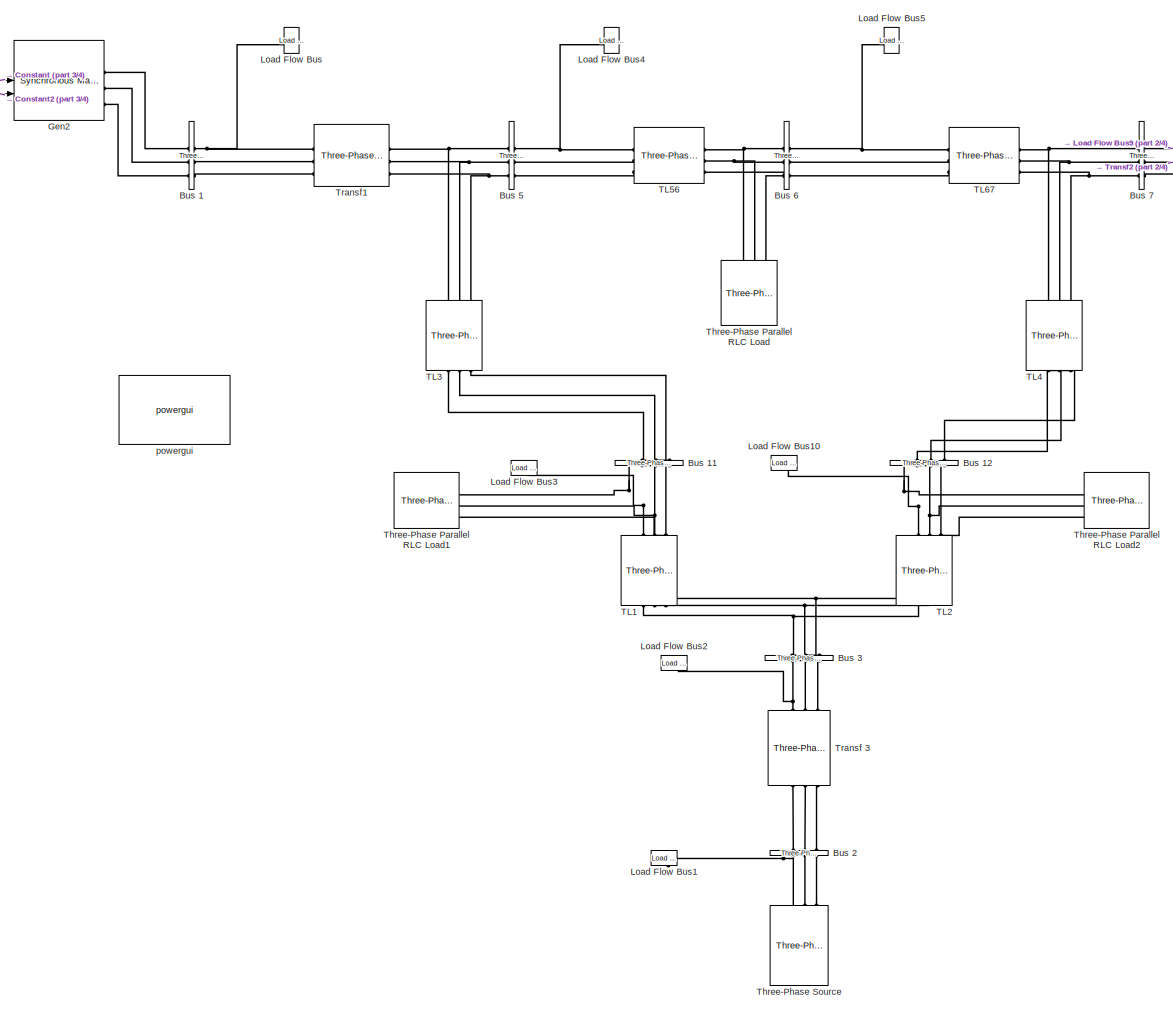
[diagram: root canvas - part 1/4, central region]
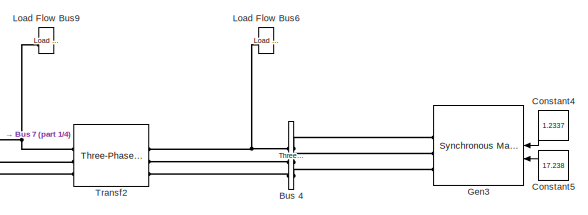
[diagram: root canvas - part 2/4, top right region]
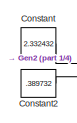
[diagram: root canvas - part 3/4, top left region]
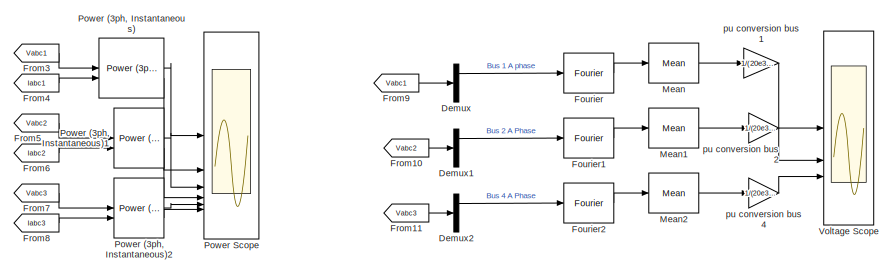
[diagram: root canvas - part 4/4, bottom center region]
MODEL slx_33bebc0947e6
KIND model
CONFIG AbsTol = auto
CONFIG EnableMultiTasking = off
CONFIG FixedStep = auto
CONFIG MaxStep = auto
CONFIG MinStep = auto
CONFIG RelTol = 1e-3
CONFIG SampleTimeConstraint = Unconstrained
CONFIG SolverName = VariableStepAuto
CONFIG StartTime = 0.0
CONFIG StopTime = 10
BLOCK [Reference] Bus 1  REF=spsThreePhaseVIMeasurementLib/Three-Phase
V-I Measurement
  LibrarySourceBlock = sps_lib/Sensors and Measurements/Three-Phase\nV-I Measurement
  SourceBlock = spsThreePhaseVIMeasurementLib/Three-Phase\nV-I Measurement
  SourceType = Three-Phase VI Measurement
BLOCK [Reference] Bus 11  REF=spsThreePhaseVIMeasurementLib/Three-Phase
V-I Measurement
  LibrarySourceBlock = sps_lib/Sensors and Measurements/Three-Phase\nV-I Measurement
  NameLocation = left
  SourceBlock = spsThreePhaseVIMeasurementLib/Three-Phase\nV-I Measurement
  SourceType = Three-Phase VI Measurement
BLOCK [Reference] Bus 12  REF=spsThreePhaseVIMeasurementLib/Three-Phase
V-I Measurement
  LibrarySourceBlock = sps_lib/Sensors and Measurements/Three-Phase\nV-I Measurement
  NameLocation = left
  SourceBlock = spsThreePhaseVIMeasurementLib/Three-Phase\nV-I Measurement
  SourceType = Three-Phase VI Measurement
BLOCK [Reference] Bus 2  REF=spsThreePhaseVIMeasurementLib/Three-Phase
V-I Measurement
  LibrarySourceBlock = sps_lib/Sensors and Measurements/Three-Phase\nV-I Measurement
  NameLocation = right
  SourceBlock = spsThreePhaseVIMeasurementLib/Three-Phase\nV-I Measurement
  SourceType = Three-Phase VI Measurement
BLOCK [Reference] Bus 3  REF=spsThreePhaseVIMeasurementLib/Three-Phase
V-I Measurement
  LibrarySourceBlock = sps_lib/Sensors and Measurements/Three-Phase\nV-I Measurement
  NameLocation = left
  SourceBlock = spsThreePhaseVIMeasurementLib/Three-Phase\nV-I Measurement
  SourceType = Three-Phase VI Measurement
BLOCK [Reference] Bus 4  REF=spsThreePhaseVIMeasurementLib/Three-Phase
V-I Measurement
  LibrarySourceBlock = sps_lib/Sensors and Measurements/Three-Phase\nV-I Measurement
  SourceBlock = spsThreePhaseVIMeasurementLib/Three-Phase\nV-I Measurement
  SourceType = Three-Phase VI Measurement
BLOCK [Reference] Bus 5  REF=spsThreePhaseVIMeasurementLib/Three-Phase
V-I Measurement
  LibrarySourceBlock = sps_lib/Sensors and Measurements/Three-Phase\nV-I Measurement
  SourceBlock = spsThreePhaseVIMeasurementLib/Three-Phase\nV-I Measurement
  SourceType = Three-Phase VI Measurement
BLOCK [Reference] Bus 6  REF=spsThreePhaseVIMeasurementLib/Three-Phase
V-I Measurement
  LibrarySourceBlock = sps_lib/Sensors and Measurements/Three-Phase\nV-I Measurement
  SourceBlock = spsThreePhaseVIMeasurementLib/Three-Phase\nV-I Measurement
  SourceType = Three-Phase VI Measurement
BLOCK [Reference] Bus 7  REF=spsThreePhaseVIMeasurementLib/Three-Phase
V-I Measurement
  LibrarySourceBlock = sps_lib/Sensors and Measurements/Three-Phase\nV-I Measurement
  SourceBlock = spsThreePhaseVIMeasurementLib/Three-Phase\nV-I Measurement
  SourceType = Three-Phase VI Measurement
BLOCK [Constant] Constant
  Value = 2.332432
BLOCK [Constant] Constant2
  Value = .389732
BLOCK [Constant] Constant4
  NameLocation = top
  Value = 1.2337
BLOCK [Constant] Constant5
  NameLocation = top
  Value = 17.238
BLOCK [Demux] Demux
  Outputs = 3
BLOCK [Demux] Demux1
  Outputs = 3
BLOCK [Demux] Demux2
  Outputs = 3
BLOCK [Reference] Fourier  REF=spsFourierLib/Fourier
  LibrarySourceBlock = sps_lib/Sensors and Measurements/Fourier
  SourceBlock = spsFourierLib/Fourier
  SourceType = Fourier
BLOCK [Reference] Fourier1  REF=spsFourierLib/Fourier
  LibrarySourceBlock = sps_lib/Sensors and Measurements/Fourier
  SourceBlock = spsFourierLib/Fourier
  SourceType = Fourier
BLOCK [Reference] Fourier2  REF=spsFourierLib/Fourier
  LibrarySourceBlock = sps_lib/Sensors and Measurements/Fourier
  SourceBlock = spsFourierLib/Fourier
  SourceType = Fourier
BLOCK [From] From10
  GotoTag = Vabc2
BLOCK [From] From11
  GotoTag = Vabc3
BLOCK [From] From3
  GotoTag = Vabc1
BLOCK [From] From4
  GotoTag = Iabc1
BLOCK [From] From5
  GotoTag = Vabc2
BLOCK [From] From6
  GotoTag = Iabc2
BLOCK [From] From7
  GotoTag = Vabc3
BLOCK [From] From8
  GotoTag = Iabc3
BLOCK [From] From9
  GotoTag = Vabc1
BLOCK [Reference] Gen2  REF=spsSynchronousMachinepuStandardLib/Synchronous Machine
pu Standard
  LibrarySourceBlock = sps_lib/Electrical Machines/Synchronous Machine\npu Standard
  SourceBlock = spsSynchronousMachinepuStandardLib/Synchronous Machine\npu Standard
  SourceType = Synchronous Machine
BLOCK [Reference] Gen3  REF=spsSynchronousMachinepuStandardLib/Synchronous Machine
pu Standard
  LibrarySourceBlock = sps_lib/Electrical Machines/Synchronous Machine\npu Standard
  SourceBlock = spsSynchronousMachinepuStandardLib/Synchronous Machine\npu Standard
  SourceType = Synchronous Machine
BLOCK [Reference] Load Flow Bus  REF=spsLoadFlowBusLib/Load Flow Bus
  AttributesFormatString = %<ID>\n%<Vbase>V\n%<VLF>pu\n%<angleLF>deg.
  LibrarySourceBlock = sps_lib/Utilities/Load Flow Bus
  SourceBlock = spsLoadFlowBusLib/Load Flow Bus
  SourceType = Load Flow Bus
BLOCK [Reference] Load Flow Bus1  REF=spsLoadFlowBusLib/Load Flow Bus
  AttributesFormatString = %<ID>\n%<Vbase>V\n%<VLF>pu\n%<angleLF>deg.
  LibrarySourceBlock = sps_lib/Utilities/Load Flow Bus
  NameLocation = right
  SourceBlock = spsLoadFlowBusLib/Load Flow Bus
  SourceType = Load Flow Bus
BLOCK [Reference] Load Flow Bus10  REF=spsLoadFlowBusLib/Load Flow Bus
  AttributesFormatString = %<ID>\n%<Vbase>V\n%<VLF>pu\n%<angleLF>deg.
  LibrarySourceBlock = sps_lib/Utilities/Load Flow Bus
  NameLocation = right
  SourceBlock = spsLoadFlowBusLib/Load Flow Bus
  SourceType = Load Flow Bus
BLOCK [Reference] Load Flow Bus2  REF=spsLoadFlowBusLib/Load Flow Bus
  AttributesFormatString = %<ID>\n%<Vbase>V\n%<VLF>pu\n%<angleLF>deg.
  LibrarySourceBlock = sps_lib/Utilities/Load Flow Bus
  NameLocation = right
  SourceBlock = spsLoadFlowBusLib/Load Flow Bus
  SourceType = Load Flow Bus
BLOCK [Reference] Load Flow Bus3  REF=spsLoadFlowBusLib/Load Flow Bus
  AttributesFormatString = %<ID>\n%<Vbase>V\n%<VLF>pu\n%<angleLF>deg.
  LibrarySourceBlock = sps_lib/Utilities/Load Flow Bus
  NameLocation = right
  SourceBlock = spsLoadFlowBusLib/Load Flow Bus
  SourceType = Load Flow Bus
BLOCK [Reference] Load Flow Bus4  REF=spsLoadFlowBusLib/Load Flow Bus
  AttributesFormatString = %<ID>\n%<Vbase>V\n%<VLF>pu\n%<angleLF>deg.
  LibrarySourceBlock = sps_lib/Utilities/Load Flow Bus
  SourceBlock = spsLoadFlowBusLib/Load Flow Bus
  SourceType = Load Flow Bus
BLOCK [Reference] Load Flow Bus5  REF=spsLoadFlowBusLib/Load Flow Bus
  AttributesFormatString = %<ID>\n%<Vbase>V\n%<VLF>pu\n%<angleLF>deg.
  LibrarySourceBlock = sps_lib/Utilities/Load Flow Bus
  SourceBlock = spsLoadFlowBusLib/Load Flow Bus
  SourceType = Load Flow Bus
BLOCK [Reference] Load Flow Bus6  REF=spsLoadFlowBusLib/Load Flow Bus
  AttributesFormatString = %<ID>\n%<Vbase>V\n%<VLF>pu\n%<angleLF>deg.
  LibrarySourceBlock = sps_lib/Utilities/Load Flow Bus
  SourceBlock = spsLoadFlowBusLib/Load Flow Bus
  SourceType = Load Flow Bus
BLOCK [Reference] Load Flow Bus9  REF=spsLoadFlowBusLib/Load Flow Bus
  AttributesFormatString = %<ID>\n%<Vbase>V\n%<VLF>pu\n%<angleLF>deg.
  LibrarySourceBlock = sps_lib/Utilities/Load Flow Bus
  SourceBlock = spsLoadFlowBusLib/Load Flow Bus
  SourceType = Load Flow Bus
BLOCK [Reference] Mean  REF=spsMeanLib/Mean
  LibrarySourceBlock = sps_lib/Sensors and Measurements/Mean
  SourceBlock = spsMeanLib/Mean
  SourceType = Mean
BLOCK [Reference] Mean1  REF=spsMeanLib/Mean
  LibrarySourceBlock = sps_lib/Sensors and Measurements/Mean
  SourceBlock = spsMeanLib/Mean
  SourceType = Mean
BLOCK [Reference] Mean2  REF=spsMeanLib/Mean
  LibrarySourceBlock = sps_lib/Sensors and Measurements/Mean
  SourceBlock = spsMeanLib/Mean
  SourceType = Mean
BLOCK [Reference] Power (3ph, Instantaneous)  REF=spsPower3phInstantaneousLib/Power
(3ph, Instantaneous)
  LibrarySourceBlock = sps_lib/Sensors and Measurements/Power\n(3ph, Instantaneous)
  SourceBlock = spsPower3phInstantaneousLib/Power\n(3ph, Instantaneous)
  SourceType = Power (3ph, Instantaneous)
BLOCK [Reference] Power (3ph, Instantaneous)1  REF=spsPower3phInstantaneousLib/Power
(3ph, Instantaneous)
  LibrarySourceBlock = sps_lib/Sensors and Measurements/Power\n(3ph, Instantaneous)
  SourceBlock = spsPower3phInstantaneousLib/Power\n(3ph, Instantaneous)
  SourceType = Power (3ph, Instantaneous)
BLOCK [Reference] Power (3ph, Instantaneous)2  REF=spsPower3phInstantaneousLib/Power
(3ph, Instantaneous)
  LibrarySourceBlock = sps_lib/Sensors and Measurements/Power\n(3ph, Instantaneous)
  SourceBlock = spsPower3phInstantaneousLib/Power\n(3ph, Instantaneous)
  SourceType = Power (3ph, Instantaneous)
BLOCK [Scope] Power Scope
  Floating = off
  NumInputPorts = 6
  ScopeSpecificationString = Simulink.scopes.TimeScopeBlockCfg('CurrentConfiguration', extmgr.ConfigurationSet(extmgr.Configuration('Core','General UI',true),extmgr.Configuration('Core','Source UI',true),extmgr.Configuration('Sources','WiredSimulink',true),extmgr.Configuration('Visuals','Time Domain',true,'SerializedDisplays',{struct('MinYLimReal','-688894075.64421','MaxYLimReal','978730674.07172','YLabelReal','','MinYLimMag'...<+5298ch>
BLOCK [Reference] TL1  REF=spsThreePhaseSeriesRLCBranchLib/Three-Phase
Series RLC Branch
  AttributesFormatString = \n
  LibrarySourceBlock = sps_lib/Passives/Three-Phase\nSeries RLC Branch
  NameLocation = left
  SourceBlock = spsThreePhaseSeriesRLCBranchLib/Three-Phase\nSeries RLC Branch
  SourceType = Three-Phase Series RLC Branch
BLOCK [Reference] TL2  REF=spsThreePhaseSeriesRLCBranchLib/Three-Phase
Series RLC Branch
  AttributesFormatString = \n
  LibrarySourceBlock = sps_lib/Passives/Three-Phase\nSeries RLC Branch
  NameLocation = left
  SourceBlock = spsThreePhaseSeriesRLCBranchLib/Three-Phase\nSeries RLC Branch
  SourceType = Three-Phase Series RLC Branch
BLOCK [Reference] TL3  REF=spsThreePhaseSeriesRLCBranchLib/Three-Phase
Series RLC Branch
  AttributesFormatString = \n
  LibrarySourceBlock = sps_lib/Passives/Three-Phase\nSeries RLC Branch
  NameLocation = left
  SourceBlock = spsThreePhaseSeriesRLCBranchLib/Three-Phase\nSeries RLC Branch
  SourceType = Three-Phase Series RLC Branch
BLOCK [Reference] TL4  REF=spsThreePhaseSeriesRLCBranchLib/Three-Phase
Series RLC Branch
  AttributesFormatString = \n
  LibrarySourceBlock = sps_lib/Passives/Three-Phase\nSeries RLC Branch
  NameLocation = left
  SourceBlock = spsThreePhaseSeriesRLCBranchLib/Three-Phase\nSeries RLC Branch
  SourceType = Three-Phase Series RLC Branch
BLOCK [Reference] TL56  REF=spsThreePhaseSeriesRLCBranchLib/Three-Phase
Series RLC Branch
  AttributesFormatString = \n
  LibrarySourceBlock = sps_lib/Passives/Three-Phase\nSeries RLC Branch
  SourceBlock = spsThreePhaseSeriesRLCBranchLib/Three-Phase\nSeries RLC Branch
  SourceType = Three-Phase Series RLC Branch
BLOCK [Reference] TL67  REF=spsThreePhaseSeriesRLCBranchLib/Three-Phase
Series RLC Branch
  AttributesFormatString = \n
  LibrarySourceBlock = sps_lib/Passives/Three-Phase\nSeries RLC Branch
  SourceBlock = spsThreePhaseSeriesRLCBranchLib/Three-Phase\nSeries RLC Branch
  SourceType = Three-Phase Series RLC Branch
BLOCK [Reference] Three-Phase Parallel RLC Load  REF=spsThreePhaseParallelRLCLoadLib/Three-Phase
Parallel RLC Load
  AttributesFormatString = \n
  LibrarySourceBlock = sps_lib/Passives/Three-Phase\nParallel RLC Load
  SourceBlock = spsThreePhaseParallelRLCLoadLib/Three-Phase\nParallel RLC Load
  SourceType = Three-Phase Parallel RLC Load
BLOCK [Reference] Three-Phase Parallel RLC Load1  REF=spsThreePhaseParallelRLCLoadLib/Three-Phase
Parallel RLC Load
  AttributesFormatString = \n
  LibrarySourceBlock = sps_lib/Passives/Three-Phase\nParallel RLC Load
  NameLocation = left
  SourceBlock = spsThreePhaseParallelRLCLoadLib/Three-Phase\nParallel RLC Load
  SourceType = Three-Phase Parallel RLC Load
BLOCK [Reference] Three-Phase Parallel RLC Load2  REF=spsThreePhaseParallelRLCLoadLib/Three-Phase
Parallel RLC Load
  AttributesFormatString = \n
  LibrarySourceBlock = sps_lib/Passives/Three-Phase\nParallel RLC Load
  NameLocation = right
  SourceBlock = spsThreePhaseParallelRLCLoadLib/Three-Phase\nParallel RLC Load
  SourceType = Three-Phase Parallel RLC Load
BLOCK [Reference] Three-Phase Source  REF=spsThreePhaseSourceLib/Three-Phase Source
  LibrarySourceBlock = sps_lib/Sources/Three-Phase Source
  NameLocation = right
  SourceBlock = spsThreePhaseSourceLib/Three-Phase Source
  SourceType = Three-Phase Source
BLOCK [Reference] Transf 3  REF=spsThreePhaseTransformerTwoWindingsLib/Three-Phase
Transformer
(Two Windings)
  LibrarySourceBlock = sps_lib/Power Grid Elements/Three-Phase\nTransformer\n(Two Windings)
  NameLocation = right
  SourceBlock = spsThreePhaseTransformerTwoWindingsLib/Three-Phase\nTransformer\n(Two Windings)
  SourceType = Three-Phase Transformer (Two Windings)
BLOCK [Reference] Transf1  REF=spsThreePhaseTransformerTwoWindingsLib/Three-Phase
Transformer
(Two Windings)
  LibrarySourceBlock = sps_lib/Power Grid Elements/Three-Phase\nTransformer\n(Two Windings)
  SourceBlock = spsThreePhaseTransformerTwoWindingsLib/Three-Phase\nTransformer\n(Two Windings)
  SourceType = Three-Phase Transformer (Two Windings)
BLOCK [Reference] Transf2  REF=spsThreePhaseTransformerTwoWindingsLib/Three-Phase
Transformer
(Two Windings)
  LibrarySourceBlock = sps_lib/Power Grid Elements/Three-Phase\nTransformer\n(Two Windings)
  SourceBlock = spsThreePhaseTransformerTwoWindingsLib/Three-Phase\nTransformer\n(Two Windings)
  SourceType = Three-Phase Transformer (Two Windings)
BLOCK [Scope] Voltage Scope
  Floating = off
  NumInputPorts = 3
  ScopeSpecificationString = Simulink.scopes.TimeScopeBlockCfg('CurrentConfiguration', extmgr.ConfigurationSet(extmgr.Configuration('Core','General UI',true),extmgr.Configuration('Core','Source UI',true),extmgr.Configuration('Sources','WiredSimulink',true,'DataLoggingVariableName','ScopeData1'),extmgr.Configuration('Visuals','Time Domain',true,'SerializedDisplays',{struct('MinYLimReal','-0.21867','MaxYLimReal','1.96802','YLab...<+2828ch>
BLOCK [Reference] powergui  REF=spspowerguiLib/powergui
  LibrarySourceBlock = sps_lib/powergui
  Priority = 1
  SourceBlock = spspowerguiLib/powergui
  SourceType = PSB option menu block
BLOCK [Gain] pu conversion bus 1
  Gain = 1/(20e3/sqrt(3)*sqrt(2))
BLOCK [Gain] pu conversion bus 2
  Gain = 1/(20e3/sqrt(3)*sqrt(2))
BLOCK [Gain] pu conversion bus 4
  Gain = 1/(20e3/sqrt(3)*sqrt(2))
LINE Constant2:1 -> Gen2:2
LINE Constant4:1 -> Gen3:1
LINE Constant5:1 -> Gen3:2
LINE Constant:1 -> Gen2:1
LINE Demux1:1 -> Fourier1:1
LINE Demux2:1 -> Fourier2:1
LINE Demux:1 -> Fourier:1
LINE Fourier1:1 -> Mean1:1
LINE Fourier2:1 -> Mean2:1
LINE Fourier:1 -> Mean:1
LINE From10:1 -> Demux1:1
LINE From11:1 -> Demux2:1
LINE From3:1 -> Power (3ph, Instantaneous):1
LINE From4:1 -> Power (3ph, Instantaneous):2
LINE From5:1 -> Power (3ph, Instantaneous)1:1
LINE From6:1 -> Power (3ph, Instantaneous)1:2
LINE From7:1 -> Power (3ph, Instantaneous)2:1
LINE From8:1 -> Power (3ph, Instantaneous)2:2
LINE From9:1 -> Demux:1
LINE Mean1:1 -> pu conversion bus 2:1
LINE Mean2:1 -> pu conversion bus 4:1
LINE Mean:1 -> pu conversion bus 1:1
LINE Power (3ph, Instantaneous)1:1 -> Power Scope:3
LINE Power (3ph, Instantaneous)1:2 -> Power Scope:4
LINE Power (3ph, Instantaneous)2:1 -> Power Scope:5
LINE Power (3ph, Instantaneous)2:2 -> Power Scope:6
LINE Power (3ph, Instantaneous):1 -> Power Scope:1
LINE Power (3ph, Instantaneous):2 -> Power Scope:2
LINE pu conversion bus 1:1 -> Voltage Scope:1
LINE pu conversion bus 2:1 -> Voltage Scope:2
LINE pu conversion bus 4:1 -> Voltage Scope:3
PLINE Bus 11:LConn1 -- TL3:RConn3
PLINE Bus 11:LConn2 -- TL3:RConn2
PLINE Bus 11:LConn3 -- TL3:RConn1
PNET net1: Bus 11:RConn1 -- TL1:LConn3 -- Three-Phase Parallel RLC Load1:LConn3
PNET net2: Bus 11:RConn2 -- TL1:LConn2 -- Three-Phase Parallel RLC Load1:LConn2
PNET net3: Bus 11:RConn3 -- Load Flow Bus3:LConn1 -- TL1:LConn1 -- Three-Phase Parallel RLC Load1:LConn1
PLINE Bus 12:LConn1 -- TL4:RConn3
PLINE Bus 12:LConn2 -- TL4:RConn2
PLINE Bus 12:LConn3 -- TL4:RConn1
PNET net4: Bus 12:RConn1 -- TL2:LConn3 -- Three-Phase Parallel RLC Load2:LConn3
PNET net5: Bus 12:RConn2 -- TL2:LConn2 -- Three-Phase Parallel RLC Load2:LConn2
PNET net6: Bus 12:RConn3 -- Load Flow Bus10:LConn1 -- TL2:LConn1 -- Three-Phase Parallel RLC Load2:LConn1
PLINE Bus 1:LConn1 -- Gen2:RConn1
PLINE Bus 1:LConn2 -- Gen2:RConn2
PLINE Bus 1:LConn3 -- Gen2:RConn3
PNET net7: Bus 1:RConn1 -- Load Flow Bus:LConn1 -- Transf1:LConn1
PLINE Bus 1:RConn2 -- Transf1:LConn2
PLINE Bus 1:RConn3 -- Transf1:LConn3
PNET net8: Bus 2:LConn1 -- Load Flow Bus1:LConn1 -- Three-Phase Source:RConn1
PLINE Bus 2:LConn2 -- Three-Phase Source:RConn2
PLINE Bus 2:LConn3 -- Three-Phase Source:RConn3
PLINE Bus 2:RConn1 -- Transf 3:LConn1
PLINE Bus 2:RConn2 -- Transf 3:LConn2
PLINE Bus 2:RConn3 -- Transf 3:LConn3
PNET net9: Bus 3:LConn1 -- TL1:RConn3 -- TL2:RConn3
PNET net10: Bus 3:LConn2 -- TL1:RConn2 -- TL2:RConn2
PNET net11: Bus 3:LConn3 -- TL1:RConn1 -- TL2:RConn1
PLINE Bus 3:RConn1 -- Transf 3:RConn3
PLINE Bus 3:RConn2 -- Transf 3:RConn2
PNET net12: Bus 3:RConn3 -- Load Flow Bus2:LConn1 -- Transf 3:RConn1
PNET net13: Bus 4:LConn1 -- Load Flow Bus6:LConn1 -- Transf2:LConn1
PLINE Bus 4:LConn2 -- Transf2:LConn2
PLINE Bus 4:LConn3 -- Transf2:LConn3
PLINE Bus 4:RConn1 -- Gen3:RConn1
PLINE Bus 4:RConn2 -- Gen3:RConn2
PLINE Bus 4:RConn3 -- Gen3:RConn3
PNET net14: Bus 5:LConn1 -- TL3:LConn1 -- Transf1:RConn1
PNET net15: Bus 5:LConn2 -- TL3:LConn2 -- Transf1:RConn2
PNET net16: Bus 5:LConn3 -- TL3:LConn3 -- Transf1:RConn3
PNET net17: Bus 5:RConn1 -- Load Flow Bus4:LConn1 -- TL56:LConn1
PLINE Bus 5:RConn2 -- TL56:LConn2
PLINE Bus 5:RConn3 -- TL56:LConn3
PNET net18: Bus 6:LConn1 -- TL56:RConn1 -- Three-Phase Parallel RLC Load:LConn1
PNET net19: Bus 6:LConn2 -- TL56:RConn2 -- Three-Phase Parallel RLC Load:LConn2
PNET net20: Bus 6:LConn3 -- TL56:RConn3 -- Three-Phase Parallel RLC Load:LConn3
PNET net21: Bus 6:RConn1 -- Load Flow Bus5:LConn1 -- TL67:LConn1
PLINE Bus 6:RConn2 -- TL67:LConn2
PLINE Bus 6:RConn3 -- TL67:LConn3
PNET net22: Bus 7:LConn1 -- TL4:LConn1 -- TL67:RConn1
PNET net23: Bus 7:LConn2 -- TL4:LConn2 -- TL67:RConn2
PNET net24: Bus 7:LConn3 -- TL4:LConn3 -- TL67:RConn3
PNET net25: Bus 7:RConn1 -- Load Flow Bus9:LConn1 -- Transf2:RConn1
PLINE Bus 7:RConn2 -- Transf2:RConn2
PLINE Bus 7:RConn3 -- Transf2:RConn3
note: PNET lines group multi-terminal physical nets as a canonical sorted terminal list (undirected conserving connections); 2-terminal nets keep the pairwise PLINE form
